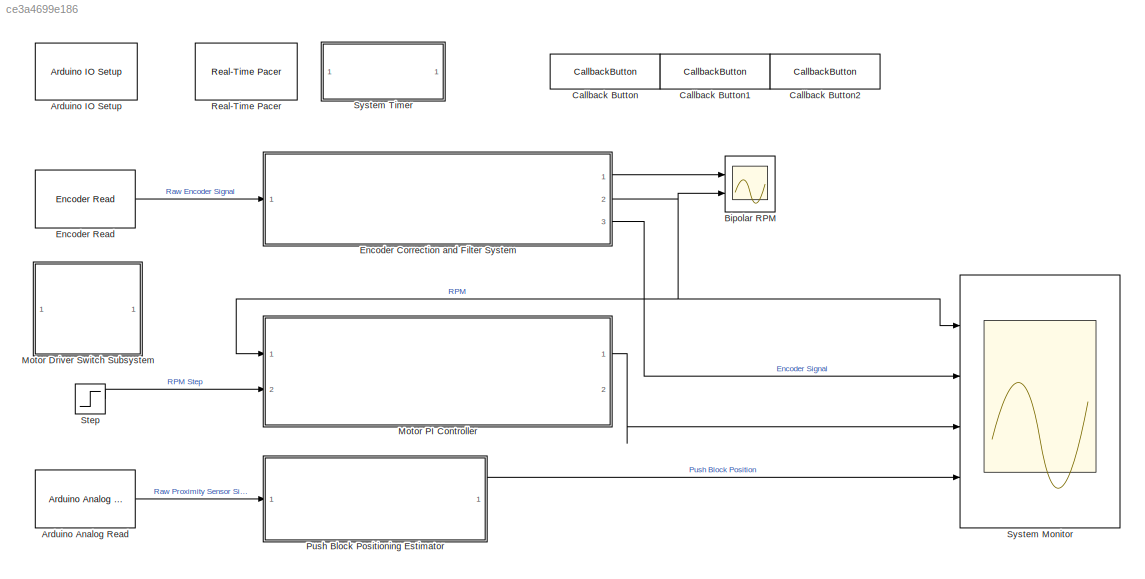
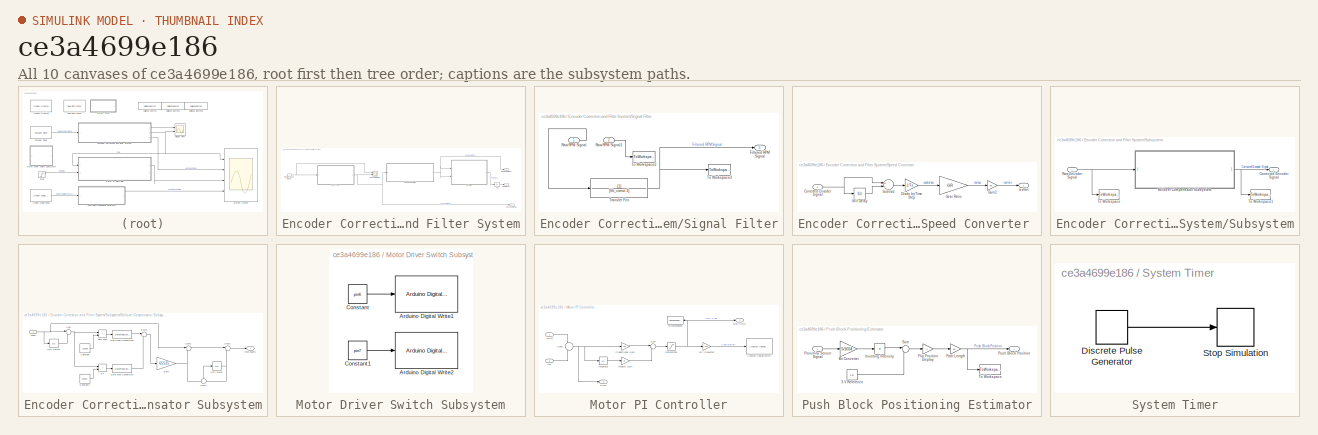
[diagram: thumbnail index - all 10 canvases of the model, root first then tree order]
MODEL slx_ce3a4699e186
KIND model
CONFIG AbsTol = auto
CONFIG EnableMultiTasking = off
CONFIG FixedStep = auto
CONFIG MaxStep = auto
CONFIG MinStep = auto
CONFIG RelTol = 1e-3
CONFIG SampleTimeConstraint = Unconstrained
CONFIG Solver = VariableStepAuto
CONFIG SolverName = VariableStepAuto
CONFIG StartTime = 0.0
CONFIG StopTime = 300
BLOCK [Reference] Arduino Analog Read  REF=arduino_io_lib/Arduino Analog Read
  Ports = [0, 1]
  SourceBlock = arduino_io_lib/Arduino Analog Read
  SourceType = Arduino IO Analog Read
BLOCK [Reference] Arduino IO Setup  REF=arduino_io_lib/Arduino IO Setup
  Ports = []
  Priority = 3
  SourceBlock = arduino_io_lib/Arduino IO Setup
  SourceType = Arduino IO Setup
BLOCK [Scope] Bipolar RPM
  Floating = off
  NumInputPorts = 2
  Ports = [2]
  ScopeSpecificationString = Simulink.scopes.TimeScopeBlockCfg('CurrentConfiguration', extmgr.ConfigurationSet(extmgr.Configuration('Core','General UI',true),extmgr.Configuration('Core','Source UI',true),extmgr.Configuration('Sources','WiredSimulink',true,'DataLoggingVariableName','ScopeData1'),extmgr.Configuration('Visuals','Time Domain',true,'TimeAxisLabels','All','SerializedDisplays',{struct('MinYLimReal','-493.00367','Max...<+1833ch>
BLOCK [CallbackButton] Callback Button
  ButtonText = Infuse
  ClickFcn = % Set Direction: Forward\nif pin6 == 1\n    pin6 = 0;\nend\nif pin7 == 0\n    pin7 = 1;\nend\n\n% User Input\nflow = input('ENTER INFUSION RATE (ml/s): ');\n\n% Convert to RPM\nrpm = flow*1083;\nmm_s = rpm/130*.6;  % mm per second\nruntime = 55/mm_s;  % relative runtime needed to infuse maximum
BLOCK [CallbackButton] Callback Button1
  ButtonText = Reset
  ClickFcn = % Set Direction: Backwards\nif pin6 == 0\n    pin6 = 1;\nend\nif pin7 == 1\n    pin7 = 0;\nend\ndisplay('PUMP READY FOR RESET');
BLOCK [CallbackButton] Callback Button2
  ButtonText = Initialize
  ClickFcn = % Initialize Motor Driver Pins\nrpm = 0;\npin6 = 1;\npin7 = 1;\n\n% Initializing Sampling Time and Signal Filters\nTs = 0.02;              % model sample time in seconds\nGR = 1/3591.84;         % gear ratio 75:1\n\nfilt_const = 5*Ts;      % time constant of the first-order filter\n\n% Motor PI Controller Values\nKp = 0.0153;\nKi = 0.0922;
BLOCK [SubSystem] Encoder Correction and Filter System
  Ports = [1, 3]
  RequestExecContextInheritance = off
BLOCK [Abs] Encoder Correction and Filter System/Abs
  SaturateOnIntegerOverflow = off
BLOCK [Scope] Encoder Correction and Filter System/Encoder Output
  Floating = off
  NumInputPorts = 2
  Ports = [2]
  ScopeSpecificationString = Simulink.scopes.TimeScopeBlockCfg('CurrentConfiguration', extmgr.ConfigurationSet(extmgr.Configuration('Core','General UI',true),extmgr.Configuration('Core','Source UI',true),extmgr.Configuration('Sources','WiredSimulink',true),extmgr.Configuration('Visuals','Time Domain',true,'TimeAxisLabels','All','SerializedDisplays',{struct('MinYLimReal','-40873.50391','MaxYLimReal','85438.99609','YLabelReal',...<+1647ch>
BLOCK [Outport] Encoder Correction and Filter System/Encoder Signal
  IconDisplay = Port number
  Port = 3
BLOCK [Outport] Encoder Correction and Filter System/RPM Signal
  IconDisplay = Port number
  Port = 2
BLOCK [Inport] Encoder Correction and Filter System/Raw Encoder Signal
  IconDisplay = Port number
BLOCK [Outport] Encoder Correction and Filter System/Raw RPM Signal
  IconDisplay = Port number
BLOCK [SubSystem] Encoder Correction and Filter System/Signal Filter
  Ports = [2, 1]
  RequestExecContextInheritance = off
BLOCK [Outport] Encoder Correction and Filter System/Signal Filter/Filtered RPM Signal
  IconDisplay = Port number
BLOCK [Inport] Encoder Correction and Filter System/Signal Filter/Raw RPM Signal
  IconDisplay = Port number
BLOCK [Inport] Encoder Correction and Filter System/Signal Filter/Raw RPM Signal1
  IconDisplay = Port number
  Port = 2
BLOCK [ToWorkspace] Encoder Correction and Filter System/Signal Filter/To Workspace2
  FixptAsFi = on
  MaxDataPoints = inf
  Ports = [1]
  SampleTime = -1
  SaveFormat = Timeseries
  VariableName = RPM
BLOCK [ToWorkspace] Encoder Correction and Filter System/Signal Filter/To Workspace3
  FixptAsFi = on
  MaxDataPoints = inf
  Ports = [1]
  SampleTime = -1
  SaveFormat = Timeseries
  VariableName = RPMfilt
BLOCK [TransferFcn] Encoder Correction and Filter System/Signal Filter/Transfer Fcn
  Denominator = [filt_const 1]
BLOCK [SubSystem] Encoder Correction and Filter System/Speed Converter 
  Ports = [1, 1]
  RequestExecContextInheritance = off
BLOCK [Inport] Encoder Correction and Filter System/Speed Converter /Corrected Encoder Signal
  IconDisplay = Port number
BLOCK [Gain] Encoder Correction and Filter System/Speed Converter /Divide by Time Step
  Gain = 1/Ts
  OutDataTypeStr = Inherit: Inherit via internal rule
  ParamDataTypeStr = Inherit: Inherit via internal rule
  SaturateOnIntegerOverflow = off
BLOCK [Gain] Encoder Correction and Filter System/Speed Converter /Gain2
  Gain = 60
  OutDataTypeStr = Inherit: Inherit via internal rule
  ParamDataTypeStr = Inherit: Inherit via internal rule
  SaturateOnIntegerOverflow = off
BLOCK [Gain] Encoder Correction and Filter System/Speed Converter /Gear Ratio
  Gain = GR
  OutDataTypeStr = Inherit: Inherit via internal rule
  ParamDataTypeStr = Inherit: Inherit via internal rule
  SaturateOnIntegerOverflow = off
BLOCK [Sum] Encoder Correction and Filter System/Speed Converter /Subtract
  InputSameDT = off
  Inputs = +-
  OutDataTypeStr = Inherit: Inherit via internal rule
  Ports = [2, 1]
  SaturateOnIntegerOverflow = off
BLOCK [UnitDelay] Encoder Correction and Filter System/Speed Converter /Unit Delay
  HasFrameUpgradeWarning = on
  SampleTime = -1
BLOCK [Outport] Encoder Correction and Filter System/Speed Converter /rev//min
  IconDisplay = Port number
BLOCK [SubSystem] Encoder Correction and Filter System/Subsystem
  Ports = [1, 1]
  RequestExecContextInheritance = off
BLOCK [Outport] Encoder Correction and Filter System/Subsystem/Corrected Encoder Signal
  IconDisplay = Port number
BLOCK [Inport] Encoder Correction and Filter System/Subsystem/Raw Encoder Signal
  IconDisplay = Port number
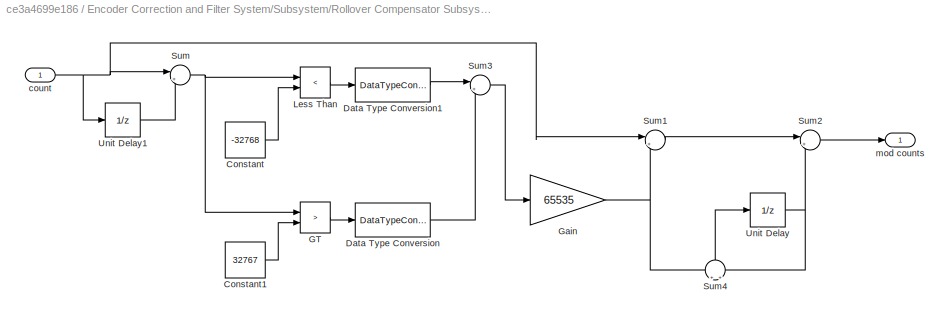
BLOCK [SubSystem] Encoder Correction and Filter System/Subsystem/Rollover Compensator Subsystem
  Ports = [1, 1]
  RequestExecContextInheritance = off
BLOCK [Constant] Encoder Correction and Filter System/Subsystem/Rollover Compensator Subsystem/Constant
  Value = -32768
BLOCK [Constant] Encoder Correction and Filter System/Subsystem/Rollover Compensator Subsystem/Constant1
  Value = 32767
BLOCK [DataTypeConversion] Encoder Correction and Filter System/Subsystem/Rollover Compensator Subsystem/Data Type Conversion
  OutDataTypeStr = double
  RndMeth = Floor
  SaturateOnIntegerOverflow = off
BLOCK [DataTypeConversion] Encoder Correction and Filter System/Subsystem/Rollover Compensator Subsystem/Data Type Conversion1
  OutDataTypeStr = double
  RndMeth = Floor
  SaturateOnIntegerOverflow = off
BLOCK [RelationalOperator] Encoder Correction and Filter System/Subsystem/Rollover Compensator Subsystem/GT
  InputSameDT = off
  Operator = >
  OutDataTypeStr = boolean
  Ports = [2, 1]
  RndMeth = Simplest
BLOCK [Gain] Encoder Correction and Filter System/Subsystem/Rollover Compensator Subsystem/Gain
  Gain = 65535
  OutDataTypeStr = Inherit: Inherit via internal rule
  ParamDataTypeStr = Inherit: Inherit via internal rule
  SaturateOnIntegerOverflow = off
BLOCK [RelationalOperator] Encoder Correction and Filter System/Subsystem/Rollover Compensator Subsystem/Less Than
  InputSameDT = off
  Operator = <
  OutDataTypeStr = boolean
  Ports = [2, 1]
  RndMeth = Simplest
BLOCK [Sum] Encoder Correction and Filter System/Subsystem/Rollover Compensator Subsystem/Sum
  IconShape = round
  InputSameDT = off
  Inputs = |+-
  OutDataTypeStr = Inherit: Inherit via internal rule
  Ports = [2, 1]
  SaturateOnIntegerOverflow = off
BLOCK [Sum] Encoder Correction and Filter System/Subsystem/Rollover Compensator Subsystem/Sum1
  IconShape = round
  InputSameDT = off
  Inputs = |++
  OutDataTypeStr = Inherit: Inherit via internal rule
  Ports = [2, 1]
  SaturateOnIntegerOverflow = off
BLOCK [Sum] Encoder Correction and Filter System/Subsystem/Rollover Compensator Subsystem/Sum2
  IconShape = round
  InputSameDT = off
  Inputs = |++
  OutDataTypeStr = Inherit: Inherit via internal rule
  Ports = [2, 1]
  SaturateOnIntegerOverflow = off
BLOCK [Sum] Encoder Correction and Filter System/Subsystem/Rollover Compensator Subsystem/Sum3
  IconShape = round
  InputSameDT = off
  Inputs = |+-
  OutDataTypeStr = Inherit: Inherit via internal rule
  Ports = [2, 1]
  SaturateOnIntegerOverflow = off
BLOCK [Sum] Encoder Correction and Filter System/Subsystem/Rollover Compensator Subsystem/Sum4
  IconShape = round
  InputSameDT = off
  Inputs = +|+
  OutDataTypeStr = Inherit: Inherit via internal rule
  Ports = [2, 1]
  SaturateOnIntegerOverflow = off
BLOCK [UnitDelay] Encoder Correction and Filter System/Subsystem/Rollover Compensator Subsystem/Unit Delay
  HasFrameUpgradeWarning = on
  SampleTime = -1
BLOCK [UnitDelay] Encoder Correction and Filter System/Subsystem/Rollover Compensator Subsystem/Unit Delay1
  HasFrameUpgradeWarning = on
  SampleTime = -1
BLOCK [Inport] Encoder Correction and Filter System/Subsystem/Rollover Compensator Subsystem/count
  IconDisplay = Port number
BLOCK [Outport] Encoder Correction and Filter System/Subsystem/Rollover Compensator Subsystem/mod counts 
  IconDisplay = Port number
BLOCK [ToWorkspace] Encoder Correction and Filter System/Subsystem/To Workspace
  FixptAsFi = on
  MaxDataPoints = inf
  Ports = [1]
  SampleTime = -1
  SaveFormat = Timeseries
  VariableName = counts
BLOCK [ToWorkspace] Encoder Correction and Filter System/Subsystem/To Workspace1
  FixptAsFi = on
  MaxDataPoints = inf
  Ports = [1]
  SampleTime = -1
  SaveFormat = Timeseries
  VariableName = countsMod
BLOCK [Reference] Encoder Read  REF=arduino_io_lib/Encoder Read
  Ports = [0, 1]
  SourceBlock = arduino_io_lib/Encoder Read
  SourceType = Arduino IO Encoder Read
BLOCK [SubSystem] Motor Driver Switch Subsystem
  Ports = []
  RequestExecContextInheritance = off
BLOCK [Reference] Motor Driver Switch Subsystem/Arduino Digital Write1  REF=arduino_io_lib/Arduino Digital Write
  Ports = [1]
  SourceBlock = arduino_io_lib/Arduino Digital Write
  SourceType = Arduino IO digital Write
BLOCK [Reference] Motor Driver Switch Subsystem/Arduino Digital Write2  REF=arduino_io_lib/Arduino Digital Write
  Ports = [1]
  SourceBlock = arduino_io_lib/Arduino Digital Write
  SourceType = Arduino IO digital Write
BLOCK [Constant] Motor Driver Switch Subsystem/Constant
  Value = pin6
BLOCK [Constant] Motor Driver Switch Subsystem/Constant1
  Value = pin7
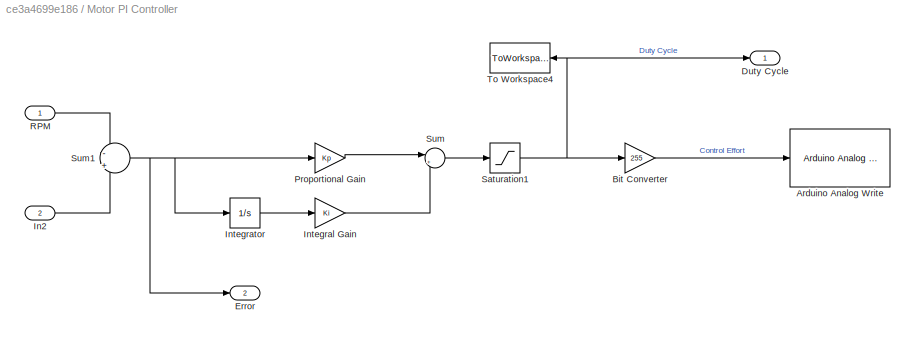
BLOCK [SubSystem] Motor PI Controller
  Ports = [2, 2]
  RequestExecContextInheritance = off
BLOCK [Reference] Motor PI Controller/Arduino Analog Write  REF=arduino_io_lib/Arduino Analog Write
  Ports = [1]
  SourceBlock = arduino_io_lib/Arduino Analog Write
  SourceType = Arduino IO analog Write (PWM)
BLOCK [Gain] Motor PI Controller/Bit Converter
  Gain = 255
  OutDataTypeStr = Inherit: Inherit via internal rule
  ParamDataTypeStr = Inherit: Inherit via internal rule
  SaturateOnIntegerOverflow = off
BLOCK [Outport] Motor PI Controller/Duty Cycle
  IconDisplay = Port number
BLOCK [Outport] Motor PI Controller/Error
  IconDisplay = Port number
  Port = 2
BLOCK [Inport] Motor PI Controller/In2
  IconDisplay = Port number
  Port = 2
BLOCK [Gain] Motor PI Controller/Integral Gain
  Gain = Ki
  OutDataTypeStr = Inherit: Inherit via internal rule
  ParamDataTypeStr = Inherit: Inherit via internal rule
  SaturateOnIntegerOverflow = off
BLOCK [Integrator] Motor PI Controller/Integrator
  Ports = [1, 1]
BLOCK [Gain] Motor PI Controller/Proportional Gain
  Gain = Kp
  OutDataTypeStr = Inherit: Inherit via internal rule
  ParamDataTypeStr = Inherit: Inherit via internal rule
  SaturateOnIntegerOverflow = off
BLOCK [Inport] Motor PI Controller/RPM
  IconDisplay = Port number
BLOCK [Saturate] Motor PI Controller/Saturation1
  InputPortMap = u0
  LowerLimit = 0
  Ports = [1, 1]
  SampleTime = Ts
  UpperLimit = 1
BLOCK [Sum] Motor PI Controller/Sum
  IconShape = round
  InputSameDT = off
  Inputs = |++
  OutDataTypeStr = Inherit: Inherit via internal rule
  Ports = [2, 1]
  SaturateOnIntegerOverflow = off
BLOCK [Sum] Motor PI Controller/Sum1
  IconShape = round
  InputSameDT = off
  Inputs = -|+
  OutDataTypeStr = Inherit: Inherit via internal rule
  Ports = [2, 1]
  SaturateOnIntegerOverflow = off
BLOCK [ToWorkspace] Motor PI Controller/To Workspace4
  FixptAsFi = on
  MaxDataPoints = inf
  Ports = [1]
  SampleTime = -1
  SaveFormat = Timeseries
  VariableName = DC
BLOCK [SubSystem] Push Block Positioning Estimator
  Ports = [1, 1]
  RequestExecContextInheritance = off
BLOCK [Constant] Push Block Positioning Estimator/3 V Reference
  Value = 3.07
BLOCK [Gain] Push Block Positioning Estimator/Bit Converter
  Gain = 5/1024
  OutDataTypeStr = Inherit: Inherit via internal rule
  ParamDataTypeStr = Inherit: Inherit via internal rule
  SaturateOnIntegerOverflow = off
BLOCK [Gain] Push Block Positioning Estimator/Flip Position Display
  Gain = -1
  OutDataTypeStr = Inherit: Inherit via internal rule
  ParamDataTypeStr = Inherit: Inherit via internal rule
  SaturateOnIntegerOverflow = off
BLOCK [Product] Push Block Positioning Estimator/Inverting Intensity
  InputSameDT = off
  Inputs = 1
  OutDataTypeStr = Inherit: Inherit via internal rule
  Ports = [1, 1]
  RndMeth = Floor
  SaturateOnIntegerOverflow = off
BLOCK [Gain] Push Block Positioning Estimator/Path Length
  Gain = 55
  OutDataTypeStr = Inherit: Inherit via internal rule
  ParamDataTypeStr = Inherit: Inherit via internal rule
  SaturateOnIntegerOverflow = off
BLOCK [Inport] Push Block Positioning Estimator/Proximity Sensor Signal
  IconDisplay = Port number
BLOCK [Outport] Push Block Positioning Estimator/Push Block Position
  IconDisplay = Port number
BLOCK [Sum] Push Block Positioning Estimator/Sum
  IconShape = round
  InputSameDT = off
  Inputs = |+-
  OutDataTypeStr = Inherit: Inherit via internal rule
  Ports = [2, 1]
  SaturateOnIntegerOverflow = off
BLOCK [ToWorkspace] Push Block Positioning Estimator/To Workspace
  FixptAsFi = on
  MaxDataPoints = inf
  Ports = [1]
  SampleTime = -1
  SaveFormat = Timeseries
  VariableName = prox
BLOCK [Reference] Real-Time Pacer  REF=arduino_io_lib/Real-Time Pacer
  Ports = []
  SourceBlock = arduino_io_lib/Real-Time Pacer
  SourceType = RealTime_Pacer
BLOCK [Step] Step
  After = rpm
  SampleTime = Ts
  Time = 0
BLOCK [Scope] System Monitor
  Floating = off
  NumInputPorts = 4
  Ports = [4]
  ScopeSpecificationString = Simulink.scopes.TimeScopeBlockCfg('CurrentConfiguration', extmgr.ConfigurationSet(extmgr.Configuration('Core','General UI',true),extmgr.Configuration('Core','Source UI',true),extmgr.Configuration('Sources','WiredSimulink',true,'DataLoggingVariableName','ScopeData2'),extmgr.Configuration('Visuals','Time Domain',true,'SerializedDisplays',{struct('MinYLimReal','-30.7058','MaxYLimReal','276.35218','YL...<+3840ch>
BLOCK [SubSystem] System Timer
  Ports = []
  RequestExecContextInheritance = off
BLOCK [DiscretePulseGenerator] System Timer/Discrete Pulse Generator
  Period = fix(runtime/Ts)
  PhaseDelay = fix(runtime/Ts)
  Ports = [0, 1]
  PulseWidth = fix(runtime/Ts)
  SampleTime = Ts
BLOCK [Stop] System Timer/Stop Simulation
LINE Arduino Analog Read:1 -> Push Block Positioning Estimator:1
LINE Encoder Correction and Filter System/Abs:1 -> Encoder Correction and Filter System/RPM Signal:1
NET Encoder Correction and Filter System/Raw Encoder Signal:1 -> Encoder Correction and Filter System/Encoder Output:1, Encoder Correction and Filter System/Subsystem:1
LINE Encoder Correction and Filter System/Signal Filter/Raw RPM Signal1:1 -> Encoder Correction and Filter System/Signal Filter/To Workspace2:1
LINE Encoder Correction and Filter System/Signal Filter/Raw RPM Signal:1 -> Encoder Correction and Filter System/Signal Filter/Transfer Fcn:1
NET Encoder Correction and Filter System/Signal Filter/Transfer Fcn:1 -> Encoder Correction and Filter System/Signal Filter/Filtered RPM Signal:1, Encoder Correction and Filter System/Signal Filter/To Workspace3:1
LINE Encoder Correction and Filter System/Signal Filter:1 -> Encoder Correction and Filter System/Abs:1
NET Encoder Correction and Filter System/Speed Converter /Corrected Encoder Signal:1 -> Encoder Correction and Filter System/Speed Converter /Subtract:1, Encoder Correction and Filter System/Speed Converter /Unit Delay:1
LINE Encoder Correction and Filter System/Speed Converter /Divide by Time Step:1 -> Encoder Correction and Filter System/Speed Converter /Gear Ratio:1
LINE Encoder Correction and Filter System/Speed Converter /Gain2:1 -> Encoder Correction and Filter System/Speed Converter /rev//min:1
LINE Encoder Correction and Filter System/Speed Converter /Gear Ratio:1 -> Encoder Correction and Filter System/Speed Converter /Gain2:1
LINE Encoder Correction and Filter System/Speed Converter /Subtract:1 -> Encoder Correction and Filter System/Speed Converter /Divide by Time Step:1
LINE Encoder Correction and Filter System/Speed Converter /Unit Delay:1 -> Encoder Correction and Filter System/Speed Converter /Subtract:2
NET Encoder Correction and Filter System/Speed Converter :1 -> Encoder Correction and Filter System/Raw RPM Signal:1, Encoder Correction and Filter System/Signal Filter:1, Encoder Correction and Filter System/Signal Filter:2
NET Encoder Correction and Filter System/Subsystem/Raw Encoder Signal:1 -> Encoder Correction and Filter System/Subsystem/Rollover Compensator Subsystem:1, Encoder Correction and Filter System/Subsystem/To Workspace:1
LINE Encoder Correction and Filter System/Subsystem/Rollover Compensator Subsystem/Constant1:1 -> Encoder Correction and Filter System/Subsystem/Rollover Compensator Subsystem/GT:2
LINE Encoder Correction and Filter System/Subsystem/Rollover Compensator Subsystem/Constant:1 -> Encoder Correction and Filter System/Subsystem/Rollover Compensator Subsystem/Less Than:2
LINE Encoder Correction and Filter System/Subsystem/Rollover Compensator Subsystem/Data Type Conversion1:1 -> Encoder Correction and Filter System/Subsystem/Rollover Compensator Subsystem/Sum3:1
LINE Encoder Correction and Filter System/Subsystem/Rollover Compensator Subsystem/Data Type Conversion:1 -> Encoder Correction and Filter System/Subsystem/Rollover Compensator Subsystem/Sum3:2
LINE Encoder Correction and Filter System/Subsystem/Rollover Compensator Subsystem/GT:1 -> Encoder Correction and Filter System/Subsystem/Rollover Compensator Subsystem/Data Type Conversion:1
NET Encoder Correction and Filter System/Subsystem/Rollover Compensator Subsystem/Gain:1 -> Encoder Correction and Filter System/Subsystem/Rollover Compensator Subsystem/Sum1:2, Encoder Correction and Filter System/Subsystem/Rollover Compensator Subsystem/Sum4:1
LINE Encoder Correction and Filter System/Subsystem/Rollover Compensator Subsystem/Less Than:1 -> Encoder Correction and Filter System/Subsystem/Rollover Compensator Subsystem/Data Type Conversion1:1
LINE Encoder Correction and Filter System/Subsystem/Rollover Compensator Subsystem/Sum1:1 -> Encoder Correction and Filter System/Subsystem/Rollover Compensator Subsystem/Sum2:1
LINE Encoder Correction and Filter System/Subsystem/Rollover Compensator Subsystem/Sum2:1 -> Encoder Correction and Filter System/Subsystem/Rollover Compensator Subsystem/mod counts :1
LINE Encoder Correction and Filter System/Subsystem/Rollover Compensator Subsystem/Sum3:1 -> Encoder Correction and Filter System/Subsystem/Rollover Compensator Subsystem/Gain:1
LINE Encoder Correction and Filter System/Subsystem/Rollover Compensator Subsystem/Sum4:1 -> Encoder Correction and Filter System/Subsystem/Rollover Compensator Subsystem/Unit Delay:1
NET Encoder Correction and Filter System/Subsystem/Rollover Compensator Subsystem/Sum:1 -> Encoder Correction and Filter System/Subsystem/Rollover Compensator Subsystem/GT:1, Encoder Correction and Filter System/Subsystem/Rollover Compensator Subsystem/Less Than:1
LINE Encoder Correction and Filter System/Subsystem/Rollover Compensator Subsystem/Unit Delay1:1 -> Encoder Correction and Filter System/Subsystem/Rollover Compensator Subsystem/Sum:2
NET Encoder Correction and Filter System/Subsystem/Rollover Compensator Subsystem/Unit Delay:1 -> Encoder Correction and Filter System/Subsystem/Rollover Compensator Subsystem/Sum2:2, Encoder Correction and Filter System/Subsystem/Rollover Compensator Subsystem/Sum4:2
NET Encoder Correction and Filter System/Subsystem/Rollover Compensator Subsystem/count:1 -> Encoder Correction and Filter System/Subsystem/Rollover Compensator Subsystem/Sum1:1, Encoder Correction and Filter System/Subsystem/Rollover Compensator Subsystem/Sum:1, Encoder Correction and Filter System/Subsystem/Rollover Compensator Subsystem/Unit Delay1:1
NET Encoder Correction and Filter System/Subsystem/Rollover Compensator Subsystem:1 -> Encoder Correction and Filter System/Subsystem/Corrected Encoder Signal:1, Encoder Correction and Filter System/Subsystem/To Workspace1:1
NET Encoder Correction and Filter System/Subsystem:1 -> Encoder Correction and Filter System/Encoder Output:2, Encoder Correction and Filter System/Encoder Signal:1, Encoder Correction and Filter System/Speed Converter :1
LINE Encoder Correction and Filter System:1 -> Bipolar RPM:1
NET Encoder Correction and Filter System:2 -> Bipolar RPM:2, Motor PI Controller:1, System Monitor:1
LINE Encoder Correction and Filter System:3 -> System Monitor:2
LINE Encoder Read:1 -> Encoder Correction and Filter System:1
LINE Motor Driver Switch Subsystem/Constant1:1 -> Motor Driver Switch Subsystem/Arduino Digital Write2:1
LINE Motor Driver Switch Subsystem/Constant:1 -> Motor Driver Switch Subsystem/Arduino Digital Write1:1
LINE Motor PI Controller/Bit Converter:1 -> Motor PI Controller/Arduino Analog Write:1
LINE Motor PI Controller/In2:1 -> Motor PI Controller/Sum1:2
LINE Motor PI Controller/Integral Gain:1 -> Motor PI Controller/Sum:2
LINE Motor PI Controller/Integrator:1 -> Motor PI Controller/Integral Gain:1
LINE Motor PI Controller/Proportional Gain:1 -> Motor PI Controller/Sum:1
LINE Motor PI Controller/RPM:1 -> Motor PI Controller/Sum1:1
NET Motor PI Controller/Saturation1:1 -> Motor PI Controller/Bit Converter:1, Motor PI Controller/Duty Cycle:1, Motor PI Controller/To Workspace4:1
NET Motor PI Controller/Sum1:1 -> Motor PI Controller/Error:1, Motor PI Controller/Integrator:1, Motor PI Controller/Proportional Gain:1
LINE Motor PI Controller/Sum:1 -> Motor PI Controller/Saturation1:1
LINE Motor PI Controller:1 -> System Monitor:3
LINE Push Block Positioning Estimator/3 V Reference:1 -> Push Block Positioning Estimator/Sum:2
LINE Push Block Positioning Estimator/Bit Converter:1 -> Push Block Positioning Estimator/Inverting Intensity:1
LINE Push Block Positioning Estimator/Flip Position Display:1 -> Push Block Positioning Estimator/Path Length:1
LINE Push Block Positioning Estimator/Inverting Intensity:1 -> Push Block Positioning Estimator/Sum:1
NET Push Block Positioning Estimator/Path Length:1 -> Push Block Positioning Estimator/Push Block Position:1, Push Block Positioning Estimator/To Workspace:1
LINE Push Block Positioning Estimator/Proximity Sensor Signal:1 -> Push Block Positioning Estimator/Bit Converter:1
LINE Push Block Positioning Estimator/Sum:1 -> Push Block Positioning Estimator/Flip Position Display:1
LINE Push Block Positioning Estimator:1 -> System Monitor:4
LINE Step:1 -> Motor PI Controller:2
LINE System Timer/Discrete Pulse Generator:1 -> System Timer/Stop Simulation:1
note: NET lines group one-source signal fan-out (src -> all destinations, sorted); 1:1 wires keep LINE
